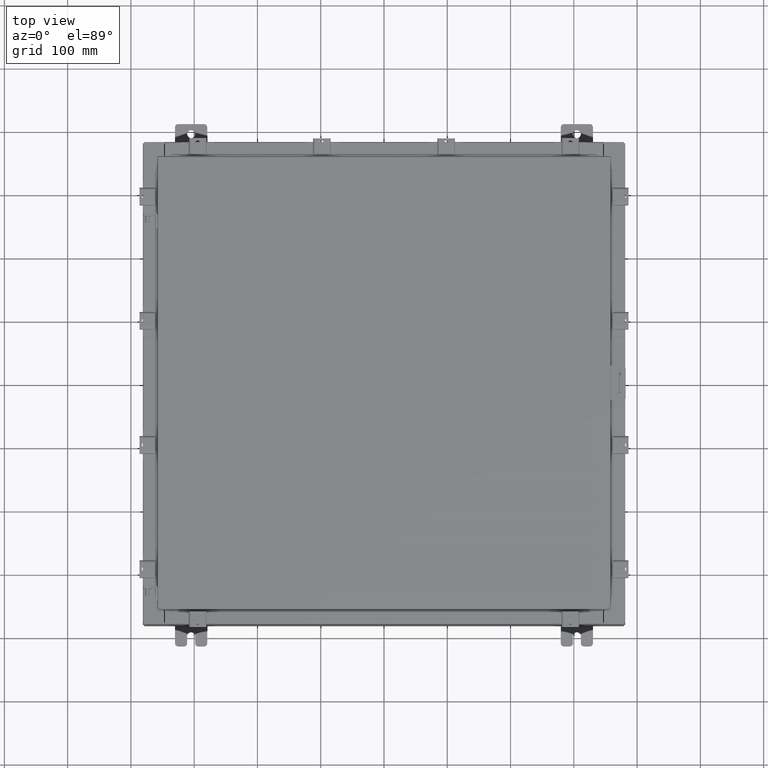
[diagram: clean part render]
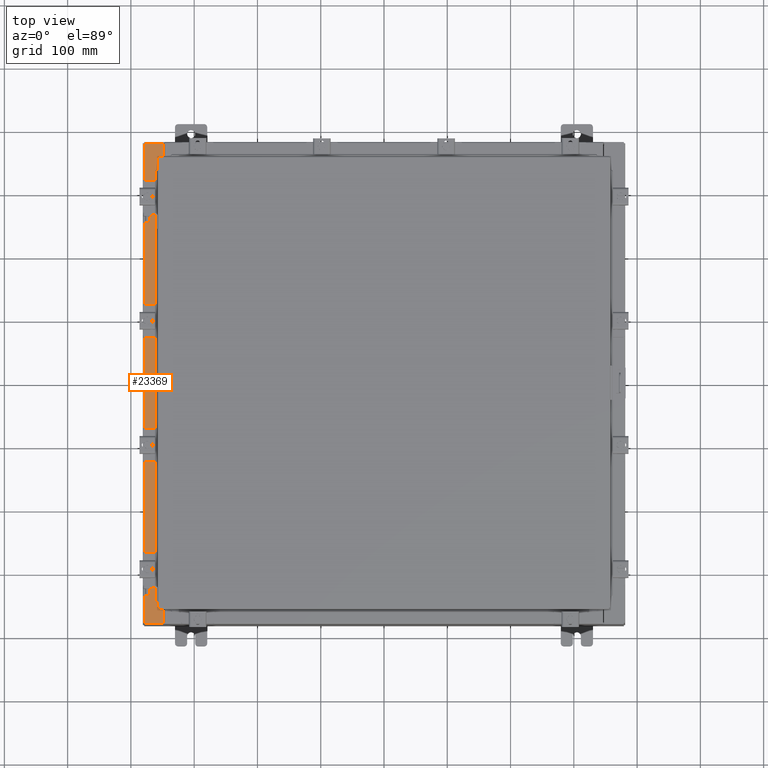
[diagram: same view with one face highlighted and labeled with its STEP entity id]
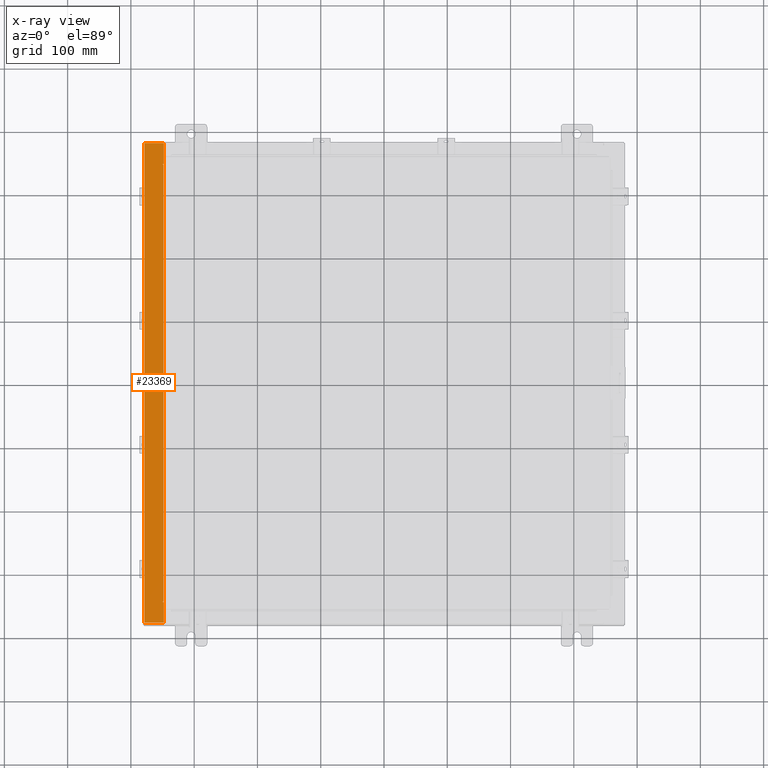
[diagram: x-ray of the same camera — body ghosted, the highlighted face saturated]
A machine part, top view. The second image highlights one B-rep face of the part: STEP entity #23369.
The next image is the same camera in x-ray: the body ghosted, the highlighted face saturated — about 0% of this face is hidden behind the body in this view.
In plain terms, the highlighted planar face has unit normal (0, 0, -1).
Its self-contained STEP definition (entity closure, byte-faithful):
#608 = VECTOR ( 'NONE', #23822, 39.37007874015748100 ) ;
#628 = LINE ( 'NONE', #10954, #4441 ) ;
#705 = VERTEX_POINT ( 'NONE', #16853 ) ;
#724 = CARTESIAN_POINT ( 'NONE',  ( -14.91230000000002900, 14.92530000000000000, 7.925300000000000000 ) ) ;
#1081 = EDGE_CURVE ( 'NONE', #1346, #12088, #10031, .T. ) ;
#1085 = VERTEX_POINT ( 'NONE', #22708 ) ;
#1346 = VERTEX_POINT ( 'NONE', #15647 ) ;
#1681 = EDGE_CURVE ( 'NONE', #12088, #4708, #628, .T. ) ;
#1811 = EDGE_CURVE ( 'NONE', #2759, #1346, #21979, .T. ) ;
#1829 = DIRECTION ( 'NONE',  ( -1.000000000000000000, -4.340572780400098900E-014, 2.170286390200049500E-014 ) ) ;
#2090 = ORIENTED_EDGE ( 'NONE', *, *, #1811, .F. ) ;
#2096 = CARTESIAN_POINT ( 'NONE',  ( -13.69970000000003000, -13.63110000000000200, 7.925300000000008900 ) ) ;
#2759 = VERTEX_POINT ( 'NONE', #18745 ) ;
#2810 = LINE ( 'NONE', #23370, #6624 ) ;
#3031 = VERTEX_POINT ( 'NONE', #19533 ) ;
#3346 = DIRECTION ( 'NONE',  ( -1.000000000000000000, 0.0000000000000000000, -7.132762385546384700E-015 ) ) ;
#3431 = DIRECTION ( 'NONE',  ( 1.000000000000000000, 0.0000000000000000000, -2.170286390200049500E-014 ) ) ;
#3699 = FACE_OUTER_BOUND ( 'NONE', #11826, .T. ) ;
#3817 = DIRECTION ( 'NONE',  ( 1.000000000000000000, 0.0000000000000000000, 0.0000000000000000000 ) ) ;
#3951 = LINE ( 'NONE', #14956, #17711 ) ;
#4026 = ORIENTED_EDGE ( 'NONE', *, *, #14909, .F. ) ;
#4185 = DIRECTION ( 'NONE',  ( -7.132762385546384700E-015, -0.0000000000000000000, 1.000000000000000000 ) ) ;
#4429 = VERTEX_POINT ( 'NONE', #724 ) ;
#4441 = VECTOR ( 'NONE', #7184, 39.37007874015748100 ) ;
#4443 = ORIENTED_EDGE ( 'NONE', *, *, #20198, .T. ) ;
#4708 = VERTEX_POINT ( 'NONE', #5374 ) ;
#5051 = VECTOR ( 'NONE', #14153, 39.37007874015748100 ) ;
#5332 = DIRECTION ( 'NONE',  ( 0.0000000000000000000, 1.000000000000000000, 0.0000000000000000000 ) ) ;
#5374 = CARTESIAN_POINT ( 'NONE',  ( -13.75005000000002800, -13.59375000000000000, 7.925300000000007100 ) ) ;
#5677 = CARTESIAN_POINT ( 'NONE',  ( -13.69970000000003000, 13.63109999999999800, 7.925300000000008900 ) ) ;
#6336 = CIRCLE ( 'NONE', #23004, 0.01867499999999949400 ) ;
#6624 = VECTOR ( 'NONE', #16068, 39.37007874015748100 ) ;
#7184 = DIRECTION ( 'NONE',  ( -1.000000000000000000, 0.0000000000000000000, 0.0000000000000000000 ) ) ;
#7578 = VECTOR ( 'NONE', #9920, 39.37007874015748100 ) ;
#8229 = LINE ( 'NONE', #9640, #17630 ) ;
#8362 = CARTESIAN_POINT ( 'NONE',  ( -13.75005000000002800, -13.63109999999999800, 7.925300000000007100 ) ) ;
#8447 = LINE ( 'NONE', #11002, #12879 ) ;
#9297 = CARTESIAN_POINT ( 'NONE',  ( -13.75005000000002800, -13.61242500000000000, 7.925300000000010700 ) ) ;
#9640 = CARTESIAN_POINT ( 'NONE',  ( -13.69970000000003000, 0.0000000000000000000, 7.925300000000008900 ) ) ;
#9920 = DIRECTION ( 'NONE',  ( -0.0000000000000000000, 1.000000000000000000, -0.0000000000000000000 ) ) ;
#10002 = ORIENTED_EDGE ( 'NONE', *, *, #11738, .T. ) ;
#10031 = LINE ( 'NONE', #20749, #5051 ) ;
#10106 = ORIENTED_EDGE ( 'NONE', *, *, #18434, .F. ) ;
#10720 = ORIENTED_EDGE ( 'NONE', *, *, #14255, .F. ) ;
#10954 = CARTESIAN_POINT ( 'NONE',  ( -13.71270000000003000, -13.59375000000000000, 7.925300000000010700 ) ) ;
#10957 = CARTESIAN_POINT ( 'NONE',  ( -13.75005000000002800, -13.63109999999999800, 7.925300000000010700 ) ) ;
#11002 = CARTESIAN_POINT ( 'NONE',  ( -13.69970000000003000, 0.0000000000000000000, 7.925300000000008900 ) ) ;
#11177 = DIRECTION ( 'NONE',  ( 1.000000000000000000, 0.0000000000000000000, 0.0000000000000000000 ) ) ;
#11536 = DIRECTION ( 'NONE',  ( 0.0000000000000000000, 1.000000000000000000, 0.0000000000000000000 ) ) ;
#11738 = EDGE_CURVE ( 'NONE', #18297, #1085, #8229, .T. ) ;
#11826 = EDGE_LOOP ( 'NONE', ( #16841, #10002, #13765, #17205, #14198, #4443, #4026, #10720, #16629, #17487, #2090, #10106 ) ) ;
#11843 = VERTEX_POINT ( 'NONE', #13661 ) ;
#12088 = VERTEX_POINT ( 'NONE', #12871 ) ;
#12839 = VERTEX_POINT ( 'NONE', #2096 ) ;
#12871 = CARTESIAN_POINT ( 'NONE',  ( -13.71270000000003000, -13.59375000000000000, 7.925300000000010700 ) ) ;
#12879 = VECTOR ( 'NONE', #5332, 39.37007874015748100 ) ;
#13661 = CARTESIAN_POINT ( 'NONE',  ( -14.91230000000002900, -14.92530000000000000, 7.925300000000000000 ) ) ;
#13765 = ORIENTED_EDGE ( 'NONE', *, *, #18663, .T. ) ;
#14109 = EDGE_CURVE ( 'NONE', #11843, #3031, #20509, .T. ) ;
#14153 = DIRECTION ( 'NONE',  ( -0.0000000000000000000, -1.000000000000000000, -0.0000000000000000000 ) ) ;
#14198 = ORIENTED_EDGE ( 'NONE', *, *, #14109, .T. ) ;
#14255 = EDGE_CURVE ( 'NONE', #4708, #21941, #18194, .T. ) ;
#14575 = DIRECTION ( 'NONE',  ( 7.132762385546384700E-015, 0.0000000000000000000, -1.000000000000000000 ) ) ;
#14669 = AXIS2_PLACEMENT_3D ( 'NONE', #16378, #14575, #3346 ) ;
#14909 = EDGE_CURVE ( 'NONE', #21941, #12839, #21351, .T. ) ;
#14956 = CARTESIAN_POINT ( 'NONE',  ( -13.69970000000003000, 13.63109999999999800, 7.925300000000009800 ) ) ;
#15431 = CARTESIAN_POINT ( 'NONE',  ( -13.75005000000002800, 13.61242499999999600, 7.925300000000010700 ) ) ;
#15647 = CARTESIAN_POINT ( 'NONE',  ( -13.71270000000003000, 13.59374999999999800, 7.925300000000010700 ) ) ;
#16068 = DIRECTION ( 'NONE',  ( -1.000000000000000000, 0.0000000000000000000, -7.132762385546384700E-015 ) ) ;
#16378 = CARTESIAN_POINT ( 'NONE',  ( -5.679009539018309800E-014, 0.0000000000000000000, 7.925300000000105700 ) ) ;
#16416 = VECTOR ( 'NONE', #3431, 39.37007874015748100 ) ;
#16629 = ORIENTED_EDGE ( 'NONE', *, *, #1681, .F. ) ;
#16841 = ORIENTED_EDGE ( 'NONE', *, *, #19879, .F. ) ;
#16853 = CARTESIAN_POINT ( 'NONE',  ( -13.75005000000002800, 13.63109999999999600, 7.925300000000007100 ) ) ;
#17205 = ORIENTED_EDGE ( 'NONE', *, *, #20488, .F. ) ;
#17294 = DIRECTION ( 'NONE',  ( 1.000000000000000000, 0.0000000000000000000, 0.0000000000000000000 ) ) ;
#17487 = ORIENTED_EDGE ( 'NONE', *, *, #1081, .F. ) ;
#17630 = VECTOR ( 'NONE', #11536, 39.37007874015748100 ) ;
#17711 = VECTOR ( 'NONE', #1829, 39.37007874015748100 ) ;
#18194 = CIRCLE ( 'NONE', #23964, 0.01867499999999949400 ) ;
#18297 = VERTEX_POINT ( 'NONE', #5677 ) ;
#18434 = EDGE_CURVE ( 'NONE', #705, #2759, #6336, .T. ) ;
#18663 = EDGE_CURVE ( 'NONE', #1085, #4429, #2810, .T. ) ;
#18745 = CARTESIAN_POINT ( 'NONE',  ( -13.75005000000002800, 13.59374999999999800, 7.925300000000007100 ) ) ;
#18805 = CARTESIAN_POINT ( 'NONE',  ( -13.75005000000002800, 13.59374999999999800, 7.925300000000010700 ) ) ;
#19533 = CARTESIAN_POINT ( 'NONE',  ( -13.69970000000003000, -14.92530000000000000, 7.925300000000008900 ) ) ;
#19879 = EDGE_CURVE ( 'NONE', #18297, #705, #3951, .T. ) ;
#19930 = CARTESIAN_POINT ( 'NONE',  ( -5.679009539018309800E-014, -14.92530000000000000, 7.925300000000105700 ) ) ;
#20198 = EDGE_CURVE ( 'NONE', #3031, #12839, #8447, .T. ) ;
#20488 = EDGE_CURVE ( 'NONE', #11843, #4429, #21903, .T. ) ;
#20509 = LINE ( 'NONE', #19930, #608 ) ;
#20749 = CARTESIAN_POINT ( 'NONE',  ( -13.71270000000003000, 13.59375000000000000, 7.925300000000010700 ) ) ;
#21101 = CARTESIAN_POINT ( 'NONE',  ( -14.91230000000002900, 14.92530000000000000, 7.925300000000000000 ) ) ;
#21351 = LINE ( 'NONE', #10957, #16416 ) ;
#21391 = VECTOR ( 'NONE', #3817, 39.37007874015748100 ) ;
#21903 = LINE ( 'NONE', #21101, #7578 ) ;
#21941 = VERTEX_POINT ( 'NONE', #8362 ) ;
#21979 = LINE ( 'NONE', #18805, #21391 ) ;
#22367 = DIRECTION ( 'NONE',  ( -7.132762385546384700E-015, -0.0000000000000000000, 1.000000000000000000 ) ) ;
#22708 = CARTESIAN_POINT ( 'NONE',  ( -13.69970000000003000, 14.92530000000000000, 7.925300000000008900 ) ) ;
#23004 = AXIS2_PLACEMENT_3D ( 'NONE', #15431, #4185, #17294 ) ;
#23369 = ADVANCED_FACE ( 'NONE', ( #3699 ), #23841, .F. ) ;
#23370 = CARTESIAN_POINT ( 'NONE',  ( -5.679009539018309800E-014, 14.92530000000000000, 7.925300000000105700 ) ) ;
#23822 = DIRECTION ( 'NONE',  ( 1.000000000000000000, -0.0000000000000000000, 7.132762385546384700E-015 ) ) ;
#23841 = PLANE ( 'NONE',  #14669 ) ;
#23964 = AXIS2_PLACEMENT_3D ( 'NONE', #9297, #22367, #11177 ) ;